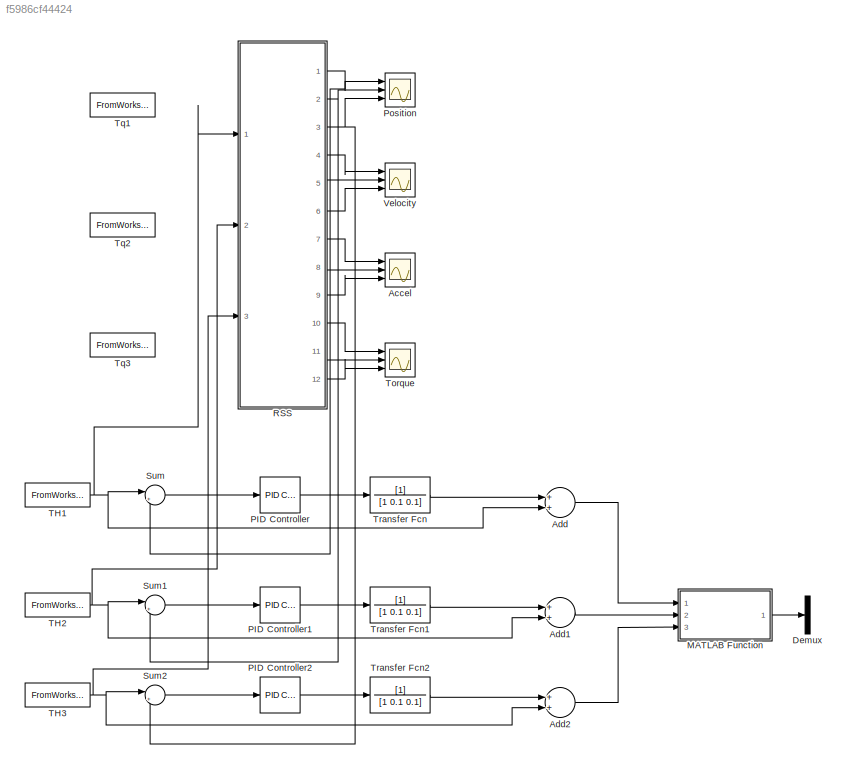
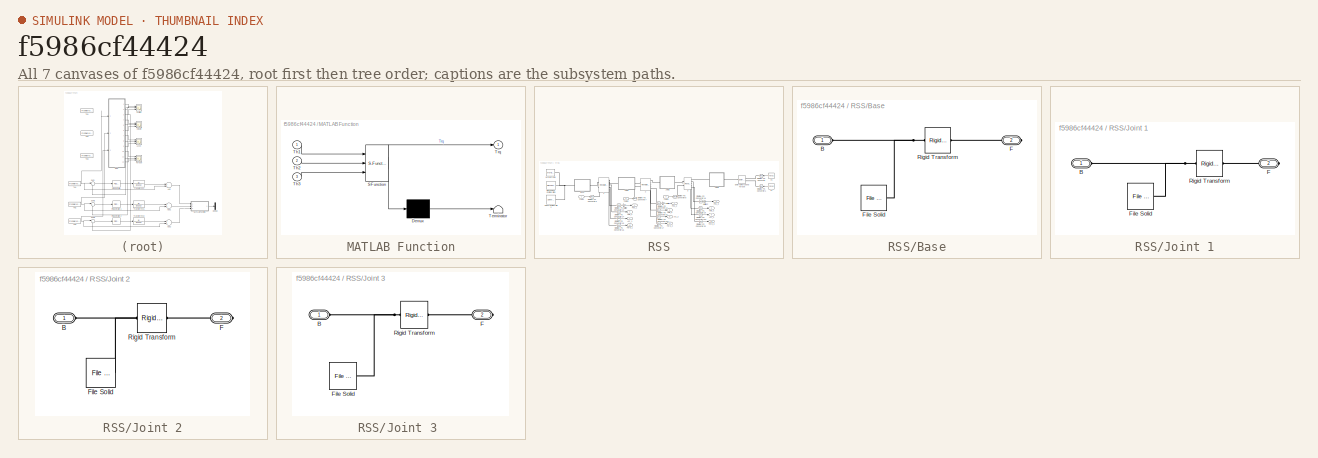
[diagram: thumbnail index - all 7 canvases of the model, root first then tree order]
MODEL slx_f5986cf44424
KIND model
CONFIG AbsTol = auto
CONFIG EnableMultiTasking = off
CONFIG FixedStep = time(2)
CONFIG MaxStep = auto
CONFIG MinStep = auto
CONFIG RelTol = 1e-3
CONFIG SampleTimeConstraint = Unconstrained
CONFIG Solver = ode14x
CONFIG SolverName = ode14x
CONFIG StartTime = 0.0
CONFIG StopTime = time(end)
BLOCK [Scope] Accel
  Floating = off
  NumInputPorts = 3
  Ports = [3]
  ScopeSpecificationString = Simulink.scopes.TimeScopeBlockCfg('CurrentConfiguration', extmgr.ConfigurationSet(extmgr.Configuration('Core','General UI',true),extmgr.Configuration('Core','Source UI',true),extmgr.Configuration('Sources','WiredSimulink',true,'DataLoggingVariableName','ScopeData1'),extmgr.Configuration('Visuals','Time Domain',true,'SerializedDisplays',{struct('MinYLimReal','-101350.32287','MaxYLimReal','91298.990...<+1483ch>
BLOCK [Sum] Add
  InputSameDT = off
  OutDataTypeStr = Inherit: Inherit via internal rule
  Ports = [2, 1]
  SaturateOnIntegerOverflow = off
BLOCK [Sum] Add1
  InputSameDT = off
  OutDataTypeStr = Inherit: Inherit via internal rule
  Ports = [2, 1]
  SaturateOnIntegerOverflow = off
BLOCK [Sum] Add2
  InputSameDT = off
  OutDataTypeStr = Inherit: Inherit via internal rule
  Ports = [2, 1]
  SaturateOnIntegerOverflow = off
BLOCK [Demux] Demux
  DisplayOption = bar
  Outputs = 3
  Ports = [1, 3]
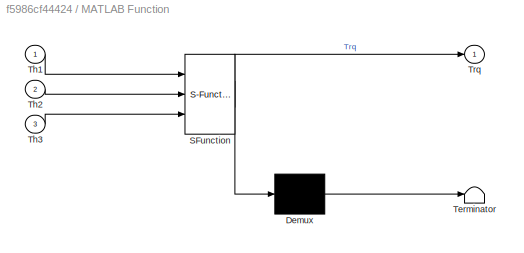
BLOCK [SubSystem] MATLAB Function
  ErrorFcn = Stateflow.Translate.translate
  PermitHierarchicalResolution = ExplicitOnly
  Ports = [3, 1]
  RequestExecContextInheritance = off
  SFBlockType = MATLAB Function
  TreatAsAtomicUnit = on
BLOCK [Demux] MATLAB Function/ Demux 
  Outputs = 1
  Ports = [1, 1]
BLOCK [S-Function] MATLAB Function/ SFunction 
  EnableBusSupport = on
  FunctionName = sf_sfun
  PortCounts = [3 2]
  Ports = [3, 2]
  SFcnIsStateOwnerBlock = off
  SFunctionDeploymentMode = off
  Tag = Stateflow S-Function 2
BLOCK [Terminator] MATLAB Function/ Terminator 
BLOCK [Inport] MATLAB Function/Th1
  IconDisplay = Port number
BLOCK [Inport] MATLAB Function/Th2
  IconDisplay = Port number
  Port = 2
BLOCK [Inport] MATLAB Function/Th3
  IconDisplay = Port number
  Port = 3
BLOCK [Outport] MATLAB Function/Trq
  IconDisplay = Port number
BLOCK [Reference] PID Controller  REF=simulink/Continuous/PID Controller
  Ports = [1, 1]
  SourceBlock = simulink/Continuous/PID Controller
  SourceProductBaseCode = SL
  SourceProductName = Simulink
  SourceType = PID 1dof
BLOCK [Reference] PID Controller1  REF=simulink/Continuous/PID Controller
  Ports = [1, 1]
  SourceBlock = simulink/Continuous/PID Controller
  SourceProductBaseCode = SL
  SourceProductName = Simulink
  SourceType = PID 1dof
BLOCK [Reference] PID Controller2  REF=simulink/Continuous/PID Controller
  Ports = [1, 1]
  SourceBlock = simulink/Continuous/PID Controller
  SourceProductBaseCode = SL
  SourceProductName = Simulink
  SourceType = PID 1dof
BLOCK [Scope] Position
  Floating = off
  NumInputPorts = 3
  Ports = [3]
  ScopeSpecificationString = Simulink.scopes.TimeScopeBlockCfg('CurrentConfiguration', extmgr.ConfigurationSet(extmgr.Configuration('Core','General UI',true),extmgr.Configuration('Core','Source UI',true),extmgr.Configuration('Sources','WiredSimulink',true,'DataLoggingVariableName','ScopeData3'),extmgr.Configuration('Visuals','Time Domain',true,'SerializedDisplays',{struct('MinYLimReal','-123.68281','MaxYLimReal','146.12306','...<+1463ch>
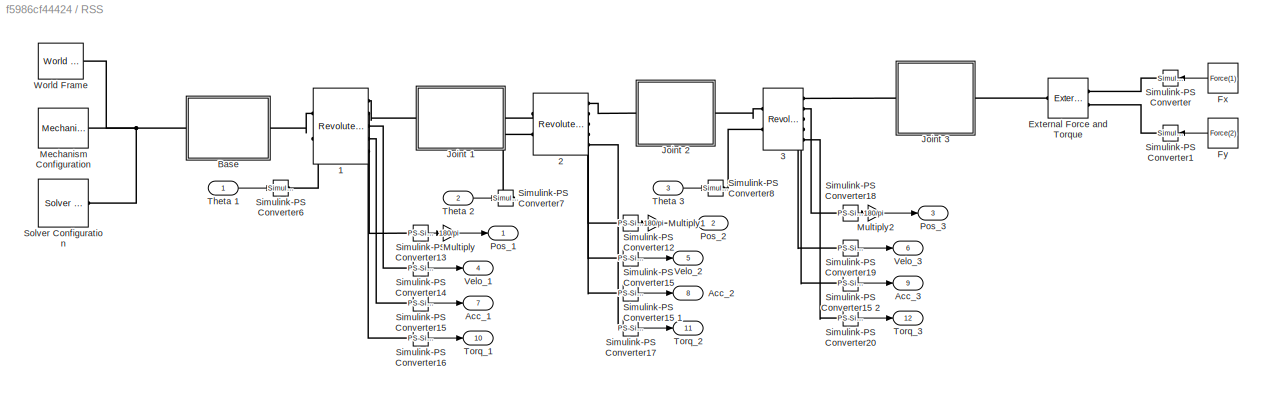
BLOCK [SubSystem] RSS
  Ports = [3, 12]
  RequestExecContextInheritance = off
BLOCK [Reference] RSS/1  REF=sm_lib/Joints/Revolute Joint
  Ports = [0, 0, 0, 0, 0, 2, 5]
  SourceBlock = sm_lib/Joints/Revolute Joint
  SourceProductBaseCode = MS
  SourceProductName = Simscape Multibody
  SourceType = Revolute Joint
BLOCK [Reference] RSS/2  REF=sm_lib/Joints/Revolute Joint
  Ports = [0, 0, 0, 0, 0, 2, 5]
  SourceBlock = sm_lib/Joints/Revolute Joint
  SourceProductBaseCode = MS
  SourceProductName = Simscape Multibody
  SourceType = Revolute Joint
BLOCK [Reference] RSS/3  REF=sm_lib/Joints/Revolute Joint
  Ports = [0, 0, 0, 0, 0, 2, 5]
  SourceBlock = sm_lib/Joints/Revolute Joint
  SourceProductBaseCode = MS
  SourceProductName = Simscape Multibody
  SourceType = Revolute Joint
BLOCK [Outport] RSS/Acc_1
  IconDisplay = Port number
  Port = 7
BLOCK [Outport] RSS/Acc_2
  IconDisplay = Port number
  Port = 8
BLOCK [Outport] RSS/Acc_3
  IconDisplay = Port number
  Port = 9
BLOCK [SubSystem] RSS/Base
  Ports = [0, 0, 0, 0, 0, 1, 1]
  RequestExecContextInheritance = off
BLOCK [PMIOPort] RSS/Base/B
  Side = Left
BLOCK [PMIOPort] RSS/Base/F
  Port = 2
  Side = Right
BLOCK [Reference] RSS/Base/File Solid  REF=sm_lib/Body Elements/File Solid
  Ports = [0, 0, 0, 0, 0, 0, 1]
  SourceBlock = sm_lib/Body Elements/File Solid
  SourceProductBaseCode = MS
  SourceProductName = Simscape Multibody
  SourceType = File Solid
BLOCK [Reference] RSS/Base/Rigid Transform  REF=sm_lib/Frames and
Transforms/Rigid
Transform
  Ports = [0, 0, 0, 0, 0, 1, 1]
  SourceBlock = sm_lib/Frames and\nTransforms/Rigid\nTransform
  SourceProductBaseCode = MS
  SourceProductName = Simscape Multibody
  SourceType = Rigid\nTransform
BLOCK [Reference] RSS/External Force and Torque  REF=sm_lib/Forces and
Torques/External Force
and Torque
  Ports = [0, 0, 0, 0, 0, 2, 1]
  SourceBlock = sm_lib/Forces and\nTorques/External Force\nand Torque
  SourceProductBaseCode = MS
  SourceProductName = Simscape Multibody
  SourceType = External Force\nand Torque
BLOCK [Constant] RSS/Fx
  Value = Force(1)
BLOCK [Constant] RSS/Fy
  Value = Force(2)
BLOCK [SubSystem] RSS/Joint 1
  Ports = [0, 0, 0, 0, 0, 1, 1]
  RequestExecContextInheritance = off
BLOCK [PMIOPort] RSS/Joint 1/B
  Side = Left
BLOCK [PMIOPort] RSS/Joint 1/F
  Port = 2
  Side = Right
BLOCK [Reference] RSS/Joint 1/File Solid  REF=sm_lib/Body Elements/File Solid
  Ports = [0, 0, 0, 0, 0, 0, 1]
  SourceBlock = sm_lib/Body Elements/File Solid
  SourceProductBaseCode = MS
  SourceProductName = Simscape Multibody
  SourceType = File Solid
BLOCK [Reference] RSS/Joint 1/Rigid Transform  REF=sm_lib/Frames and
Transforms/Rigid
Transform
  Ports = [0, 0, 0, 0, 0, 1, 1]
  SourceBlock = sm_lib/Frames and\nTransforms/Rigid\nTransform
  SourceProductBaseCode = MS
  SourceProductName = Simscape Multibody
  SourceType = Rigid\nTransform
BLOCK [SubSystem] RSS/Joint 2
  Ports = [0, 0, 0, 0, 0, 1, 1]
  RequestExecContextInheritance = off
BLOCK [PMIOPort] RSS/Joint 2/B
  Side = Left
BLOCK [PMIOPort] RSS/Joint 2/F
  Port = 2
  Side = Right
BLOCK [Reference] RSS/Joint 2/File Solid  REF=sm_lib/Body Elements/File Solid
  Ports = [0, 0, 0, 0, 0, 0, 1]
  SourceBlock = sm_lib/Body Elements/File Solid
  SourceProductBaseCode = MS
  SourceProductName = Simscape Multibody
  SourceType = File Solid
BLOCK [Reference] RSS/Joint 2/Rigid Transform  REF=sm_lib/Frames and
Transforms/Rigid
Transform
  Ports = [0, 0, 0, 0, 0, 1, 1]
  SourceBlock = sm_lib/Frames and\nTransforms/Rigid\nTransform
  SourceProductBaseCode = MS
  SourceProductName = Simscape Multibody
  SourceType = Rigid\nTransform
BLOCK [SubSystem] RSS/Joint 3 
  Ports = [0, 0, 0, 0, 0, 1, 1]
  RequestExecContextInheritance = off
BLOCK [PMIOPort] RSS/Joint 3 /B
  Side = Left
BLOCK [PMIOPort] RSS/Joint 3 /F
  Port = 2
  Side = Right
BLOCK [Reference] RSS/Joint 3 /File Solid  REF=sm_lib/Body Elements/File Solid
  Ports = [0, 0, 0, 0, 0, 0, 1]
  SourceBlock = sm_lib/Body Elements/File Solid
  SourceProductBaseCode = MS
  SourceProductName = Simscape Multibody
  SourceType = File Solid
BLOCK [Reference] RSS/Joint 3 /Rigid Transform  REF=sm_lib/Frames and
Transforms/Rigid
Transform
  Ports = [0, 0, 0, 0, 0, 1, 1]
  SourceBlock = sm_lib/Frames and\nTransforms/Rigid\nTransform
  SourceProductBaseCode = MS
  SourceProductName = Simscape Multibody
  SourceType = Rigid\nTransform
BLOCK [Reference] RSS/Mechanism Configuration  REF=sm_lib/Utilities/Mechanism
Configuration
  Ports = [0, 0, 0, 0, 0, 0, 1]
  SourceBlock = sm_lib/Utilities/Mechanism\nConfiguration
  SourceProductBaseCode = MS
  SourceProductName = Simscape Multibody
  SourceType = Mechanism\nConfiguration
BLOCK [Gain] RSS/Multiply
  Gain = 180/pi
  OutDataTypeStr = Inherit: Inherit via internal rule
  ParamDataTypeStr = Inherit: Inherit via internal rule
  SaturateOnIntegerOverflow = off
BLOCK [Gain] RSS/Multiply1
  Gain = 180/pi
  OutDataTypeStr = Inherit: Inherit via internal rule
  ParamDataTypeStr = Inherit: Inherit via internal rule
  SaturateOnIntegerOverflow = off
BLOCK [Gain] RSS/Multiply2
  Gain = 180/pi
  OutDataTypeStr = Inherit: Inherit via internal rule
  ParamDataTypeStr = Inherit: Inherit via internal rule
  SaturateOnIntegerOverflow = off
BLOCK [Outport] RSS/Pos_1
  IconDisplay = Signal name
BLOCK [Outport] RSS/Pos_2
  IconDisplay = Port number
  Port = 2
BLOCK [Outport] RSS/Pos_3
  IconDisplay = Port number
  Port = 3
BLOCK [Reference] RSS/Simulink-PS Converter  REF=nesl_utility/Simulink-PS
Converter
  Ports = [1, 0, 0, 0, 0, 0, 1]
  SourceBlock = nesl_utility/Simulink-PS\nConverter
  SourceProductBaseCode = SS
  SourceProductName = Simscape
  SourceType = Simulink-PS\nConverter
BLOCK [Reference] RSS/Simulink-PS Converter1  REF=nesl_utility/Simulink-PS
Converter
  Ports = [1, 0, 0, 0, 0, 0, 1]
  SourceBlock = nesl_utility/Simulink-PS\nConverter
  SourceProductBaseCode = SS
  SourceProductName = Simscape
  SourceType = Simulink-PS\nConverter
BLOCK [Reference] RSS/Simulink-PS Converter12  REF=nesl_utility/PS-Simulink
Converter
  Ports = [0, 1, 0, 0, 0, 1]
  SourceBlock = nesl_utility/PS-Simulink\nConverter
  SourceProductBaseCode = SS
  SourceProductName = Simscape
  SourceType = PS-Simulink\nConverter
BLOCK [Reference] RSS/Simulink-PS Converter13  REF=nesl_utility/PS-Simulink
Converter
  Ports = [0, 1, 0, 0, 0, 1]
  SourceBlock = nesl_utility/PS-Simulink\nConverter
  SourceProductBaseCode = SS
  SourceProductName = Simscape
  SourceType = PS-Simulink\nConverter
BLOCK [Reference] RSS/Simulink-PS Converter14  REF=nesl_utility/PS-Simulink
Converter
  Ports = [0, 1, 0, 0, 0, 1]
  SourceBlock = nesl_utility/PS-Simulink\nConverter
  SourceProductBaseCode = SS
  SourceProductName = Simscape
  SourceType = PS-Simulink\nConverter
BLOCK [Reference] RSS/Simulink-PS Converter15  REF=nesl_utility/PS-Simulink
Converter
  Ports = [0, 1, 0, 0, 0, 1]
  SourceBlock = nesl_utility/PS-Simulink\nConverter
  SourceProductBaseCode = SS
  SourceProductName = Simscape
  SourceType = PS-Simulink\nConverter
BLOCK [Reference] RSS/Simulink-PS Converter15   REF=nesl_utility/PS-Simulink
Converter
  Ports = [0, 1, 0, 0, 0, 1]
  SourceBlock = nesl_utility/PS-Simulink\nConverter
  SourceProductBaseCode = SS
  SourceProductName = Simscape
  SourceType = PS-Simulink\nConverter
BLOCK [Reference] RSS/Simulink-PS Converter15 1  REF=nesl_utility/PS-Simulink
Converter
  Ports = [0, 1, 0, 0, 0, 1]
  SourceBlock = nesl_utility/PS-Simulink\nConverter
  SourceProductBaseCode = SS
  SourceProductName = Simscape
  SourceType = PS-Simulink\nConverter
BLOCK [Reference] RSS/Simulink-PS Converter15 2  REF=nesl_utility/PS-Simulink
Converter
  Ports = [0, 1, 0, 0, 0, 1]
  SourceBlock = nesl_utility/PS-Simulink\nConverter
  SourceProductBaseCode = SS
  SourceProductName = Simscape
  SourceType = PS-Simulink\nConverter
BLOCK [Reference] RSS/Simulink-PS Converter16  REF=nesl_utility/PS-Simulink
Converter
  Ports = [0, 1, 0, 0, 0, 1]
  SourceBlock = nesl_utility/PS-Simulink\nConverter
  SourceProductBaseCode = SS
  SourceProductName = Simscape
  SourceType = PS-Simulink\nConverter
BLOCK [Reference] RSS/Simulink-PS Converter17  REF=nesl_utility/PS-Simulink
Converter
  Ports = [0, 1, 0, 0, 0, 1]
  SourceBlock = nesl_utility/PS-Simulink\nConverter
  SourceProductBaseCode = SS
  SourceProductName = Simscape
  SourceType = PS-Simulink\nConverter
BLOCK [Reference] RSS/Simulink-PS Converter18  REF=nesl_utility/PS-Simulink
Converter
  Ports = [0, 1, 0, 0, 0, 1]
  SourceBlock = nesl_utility/PS-Simulink\nConverter
  SourceProductBaseCode = SS
  SourceProductName = Simscape
  SourceType = PS-Simulink\nConverter
BLOCK [Reference] RSS/Simulink-PS Converter19  REF=nesl_utility/PS-Simulink
Converter
  Ports = [0, 1, 0, 0, 0, 1]
  SourceBlock = nesl_utility/PS-Simulink\nConverter
  SourceProductBaseCode = SS
  SourceProductName = Simscape
  SourceType = PS-Simulink\nConverter
BLOCK [Reference] RSS/Simulink-PS Converter20  REF=nesl_utility/PS-Simulink
Converter
  Ports = [0, 1, 0, 0, 0, 1]
  SourceBlock = nesl_utility/PS-Simulink\nConverter
  SourceProductBaseCode = SS
  SourceProductName = Simscape
  SourceType = PS-Simulink\nConverter
BLOCK [Reference] RSS/Simulink-PS Converter6  REF=nesl_utility/Simulink-PS
Converter
  Ports = [1, 0, 0, 0, 0, 0, 1]
  SourceBlock = nesl_utility/Simulink-PS\nConverter
  SourceProductBaseCode = SS
  SourceProductName = Simscape
  SourceType = Simulink-PS\nConverter
BLOCK [Reference] RSS/Simulink-PS Converter7  REF=nesl_utility/Simulink-PS
Converter
  Ports = [1, 0, 0, 0, 0, 0, 1]
  SourceBlock = nesl_utility/Simulink-PS\nConverter
  SourceProductBaseCode = SS
  SourceProductName = Simscape
  SourceType = Simulink-PS\nConverter
BLOCK [Reference] RSS/Simulink-PS Converter8  REF=nesl_utility/Simulink-PS
Converter
  Ports = [1, 0, 0, 0, 0, 0, 1]
  SourceBlock = nesl_utility/Simulink-PS\nConverter
  SourceProductBaseCode = SS
  SourceProductName = Simscape
  SourceType = Simulink-PS\nConverter
BLOCK [Reference] RSS/Solver Configuration  REF=nesl_utility/Solver
Configuration
  Ports = [0, 0, 0, 0, 0, 0, 1]
  SourceBlock = nesl_utility/Solver\nConfiguration
  SourceProductBaseCode = SS
  SourceProductName = Simscape
  SourceType = Solver\nConfiguration
BLOCK [Inport] RSS/Theta 1
  IconDisplay = Port number
BLOCK [Inport] RSS/Theta 2
  IconDisplay = Port number
  Port = 2
BLOCK [Inport] RSS/Theta 3
  IconDisplay = Port number
  Port = 3
BLOCK [Outport] RSS/Torq_1
  IconDisplay = Port number
  Port = 10
BLOCK [Outport] RSS/Torq_2
  IconDisplay = Port number
  Port = 11
BLOCK [Outport] RSS/Torq_3
  IconDisplay = Port number
  Port = 12
BLOCK [Outport] RSS/Velo_1
  IconDisplay = Port number
  Port = 4
BLOCK [Outport] RSS/Velo_2
  IconDisplay = Port number
  Port = 5
BLOCK [Outport] RSS/Velo_3
  IconDisplay = Port number
  Port = 6
BLOCK [Reference] RSS/World Frame  REF=sm_lib/Frames and
Transforms/World Frame
  Ports = [0, 0, 0, 0, 0, 0, 1]
  SourceBlock = sm_lib/Frames and\nTransforms/World Frame
  SourceProductBaseCode = MS
  SourceProductName = Simscape Multibody
  SourceType = World Frame
BLOCK [Sum] Sum
  IconShape = round
  InputSameDT = off
  Inputs = |+-
  OutDataTypeStr = Inherit: Inherit via internal rule
  Ports = [2, 1]
  SaturateOnIntegerOverflow = off
BLOCK [Sum] Sum1
  IconShape = round
  InputSameDT = off
  Inputs = |+-
  OutDataTypeStr = Inherit: Inherit via internal rule
  Ports = [2, 1]
  SaturateOnIntegerOverflow = off
BLOCK [Sum] Sum2
  IconShape = round
  InputSameDT = off
  Inputs = |+-
  OutDataTypeStr = Inherit: Inherit via internal rule
  Ports = [2, 1]
  SaturateOnIntegerOverflow = off
BLOCK [FromWorkspace] TH1
  Interpolate = off
  OutputAfterFinalValue = Holding final value
  VariableName = Th1
  ZeroCross = on
BLOCK [FromWorkspace] TH2
  Interpolate = off
  OutputAfterFinalValue = Holding final value
  VariableName = Th2
  ZeroCross = on
BLOCK [FromWorkspace] TH3
  Interpolate = off
  OutputAfterFinalValue = Holding final value
  VariableName = Th3
  ZeroCross = on
BLOCK [Scope] Torque
  Floating = off
  NumInputPorts = 3
  Ports = [3]
  ScopeSpecificationString = Simulink.scopes.TimeScopeBlockCfg('CurrentConfiguration', extmgr.ConfigurationSet(extmgr.Configuration('Core','General UI',true),extmgr.Configuration('Core','Source UI',true),extmgr.Configuration('Sources','WiredSimulink',true),extmgr.Configuration('Visuals','Time Domain',true,'SerializedDisplays',{struct('MinYLimReal','-109404.83023','MaxYLimReal','336237.90852','YLabelReal','','MinYLimMag','    ...<+1519ch>
BLOCK [FromWorkspace] Tq1
  OutputAfterFinalValue = Holding final value
  VariableName = Tq1
  ZeroCross = on
BLOCK [FromWorkspace] Tq2
  OutputAfterFinalValue = Holding final value
  VariableName = Tq2
  ZeroCross = on
BLOCK [FromWorkspace] Tq3
  OutputAfterFinalValue = Holding final value
  VariableName = Tq3
  ZeroCross = on
BLOCK [TransferFcn] Transfer Fcn
  Denominator = [1 0.1 0.1]
BLOCK [TransferFcn] Transfer Fcn1
  Denominator = [1 0.1 0.1]
BLOCK [TransferFcn] Transfer Fcn2
  Denominator = [1 0.1 0.1]
BLOCK [Scope] Velocity
  Floating = off
  NumInputPorts = 3
  Ports = [3]
  ScopeSpecificationString = Simulink.scopes.TimeScopeBlockCfg('CurrentConfiguration', extmgr.ConfigurationSet(extmgr.Configuration('Core','General UI',true),extmgr.Configuration('Core','Source UI',true),extmgr.Configuration('Sources','WiredSimulink',true,'DataLoggingVariableName','ScopeData2'),extmgr.Configuration('Visuals','Time Domain',true,'SerializedDisplays',{struct('MinYLimReal','-0.00007','MaxYLimReal','0.00012','YLab...<+1451ch>
LINE Add1:1 -> MATLAB Function:2
LINE Add2:1 -> MATLAB Function:3
LINE Add:1 -> MATLAB Function:1
LINE MATLAB Function:1 -> Demux:1
LINE PID Controller1:1 -> Transfer Fcn1:1
LINE PID Controller2:1 -> Transfer Fcn2:1
LINE PID Controller:1 -> Transfer Fcn:1
LINE RSS/Fx:1 -> RSS/Simulink-PS Converter:1
LINE RSS/Fy:1 -> RSS/Simulink-PS Converter1:1
LINE RSS/Multiply1:1 -> RSS/Pos_2:1
LINE RSS/Multiply2:1 -> RSS/Pos_3:1
LINE RSS/Multiply:1 -> RSS/Pos_1:1
LINE RSS/Simulink-PS Converter12:1 -> RSS/Multiply1:1
LINE RSS/Simulink-PS Converter13:1 -> RSS/Multiply:1
LINE RSS/Simulink-PS Converter14:1 -> RSS/Velo_1:1
LINE RSS/Simulink-PS Converter15 1:1 -> RSS/Acc_2:1
LINE RSS/Simulink-PS Converter15 2:1 -> RSS/Acc_3:1
LINE RSS/Simulink-PS Converter15 :1 -> RSS/Acc_1:1
LINE RSS/Simulink-PS Converter15:1 -> RSS/Velo_2:1
LINE RSS/Simulink-PS Converter16:1 -> RSS/Torq_1:1
LINE RSS/Simulink-PS Converter17:1 -> RSS/Torq_2:1
LINE RSS/Simulink-PS Converter18:1 -> RSS/Multiply2:1
LINE RSS/Simulink-PS Converter19:1 -> RSS/Velo_3:1
LINE RSS/Simulink-PS Converter20:1 -> RSS/Torq_3:1
LINE RSS/Theta 1:1 -> RSS/Simulink-PS Converter6:1
LINE RSS/Theta 2:1 -> RSS/Simulink-PS Converter7:1
LINE RSS/Theta 3:1 -> RSS/Simulink-PS Converter8:1
NET RSS:1 -> Position:1, Sum:2
LINE RSS:10 -> Torque:1
LINE RSS:11 -> Torque:2
LINE RSS:12 -> Torque:3
NET RSS:2 -> Position:2, Sum1:2
NET RSS:3 -> Position:3, Sum2:2
LINE RSS:4 -> Velocity:1
LINE RSS:5 -> Velocity:2
LINE RSS:6 -> Velocity:3
LINE RSS:7 -> Accel:1
LINE RSS:8 -> Accel:2
LINE RSS:9 -> Accel:3
LINE Sum1:1 -> PID Controller1:1
LINE Sum2:1 -> PID Controller2:1
LINE Sum:1 -> PID Controller:1
NET TH1:1 -> Add:2, RSS:1, Sum:1
NET TH2:1 -> Add1:2, RSS:2, Sum1:1
NET TH3:1 -> Add2:2, RSS:3, Sum2:1
LINE Transfer Fcn1:1 -> Add1:1
LINE Transfer Fcn2:1 -> Add2:1
LINE Transfer Fcn:1 -> Add:1
PLINE RSS/1:LConn1 -- RSS/Base:RConn1
PLINE RSS/1:LConn2 -- RSS/Simulink-PS Converter6:RConn1
PLINE RSS/1:RConn1 -- RSS/Joint 1:LConn1
PLINE RSS/1:RConn2 -- RSS/Simulink-PS Converter13:LConn1
PLINE RSS/1:RConn3 -- RSS/Simulink-PS Converter14:LConn1
PLINE RSS/1:RConn4 -- RSS/Simulink-PS Converter15 :LConn1
PLINE RSS/1:RConn5 -- RSS/Simulink-PS Converter16:LConn1
PLINE RSS/2:LConn1 -- RSS/Joint 1:RConn1
PLINE RSS/2:LConn2 -- RSS/Simulink-PS Converter7:RConn1
PLINE RSS/2:RConn1 -- RSS/Joint 2:LConn1
PLINE RSS/2:RConn2 -- RSS/Simulink-PS Converter12:LConn1
PLINE RSS/2:RConn3 -- RSS/Simulink-PS Converter15:LConn1
PLINE RSS/2:RConn4 -- RSS/Simulink-PS Converter15 1:LConn1
PLINE RSS/2:RConn5 -- RSS/Simulink-PS Converter17:LConn1
PLINE RSS/3:LConn1 -- RSS/Joint 2:RConn1
PLINE RSS/3:LConn2 -- RSS/Simulink-PS Converter8:RConn1
PLINE RSS/3:RConn1 -- RSS/Joint 3 :LConn1
PLINE RSS/3:RConn2 -- RSS/Simulink-PS Converter18:LConn1
PLINE RSS/3:RConn3 -- RSS/Simulink-PS Converter19:LConn1
PLINE RSS/3:RConn4 -- RSS/Simulink-PS Converter15 2:LConn1
PLINE RSS/3:RConn5 -- RSS/Simulink-PS Converter20:LConn1
PNET net1: RSS/Base/B:RConn1 -- RSS/Base/File Solid:RConn1 -- RSS/Base/Rigid Transform:LConn1
PLINE RSS/Base/F:RConn1 -- RSS/Base/Rigid Transform:RConn1
PNET net2: RSS/Base:LConn1 -- RSS/Mechanism Configuration:RConn1 -- RSS/Solver Configuration:RConn1 -- RSS/World Frame:RConn1
PLINE RSS/External Force and Torque:LConn1 -- RSS/Simulink-PS Converter:RConn1
PLINE RSS/External Force and Torque:LConn2 -- RSS/Simulink-PS Converter1:RConn1
PLINE RSS/External Force and Torque:RConn1 -- RSS/Joint 3 :RConn1
PNET net3: RSS/Joint 1/B:RConn1 -- RSS/Joint 1/File Solid:RConn1 -- RSS/Joint 1/Rigid Transform:LConn1
PLINE RSS/Joint 1/F:RConn1 -- RSS/Joint 1/Rigid Transform:RConn1
PNET net4: RSS/Joint 2/B:RConn1 -- RSS/Joint 2/File Solid:RConn1 -- RSS/Joint 2/Rigid Transform:LConn1
PLINE RSS/Joint 2/F:RConn1 -- RSS/Joint 2/Rigid Transform:RConn1
PNET net5: RSS/Joint 3 /B:RConn1 -- RSS/Joint 3 /File Solid:RConn1 -- RSS/Joint 3 /Rigid Transform:LConn1
PLINE RSS/Joint 3 /F:RConn1 -- RSS/Joint 3 /Rigid Transform:RConn1
note: NET lines group one-source signal fan-out (src -> all destinations, sorted); 1:1 wires keep LINE; PNET lines group multi-terminal physical nets as a canonical sorted terminal list (undirected conserving connections); 2-terminal nets keep the pairwise PLINE form
CHART MATLAB Function states=1 transitions=1
  STATE_LABEL 'eML_blk_kernel()'
  STATE_LABEL "SCRIPT:\nfunction Trq  = fcn(Th1,Th2,Th3)\n\n    Jacob = 0.5 .* [ -sin(Th1 + Th2 + Th3) - sin(Th1 + Th2) - sin(Th1),      - sin(Th1 + Th2 + Th3) - sin(Th1 + Th2),       -sin(Th1 + Th2 + Th3);\n                             cos(Th1 + Th2 + Th3) + cos(Th1 + Th2) + cos(Th1),        cos(Th1 + Th2 + Th3) + cos(Th1 + Th2),        cos(Th1 + Th2 + Th3)];\n                            \n        Trq = Jacob' * [15;...<+112ch>"
